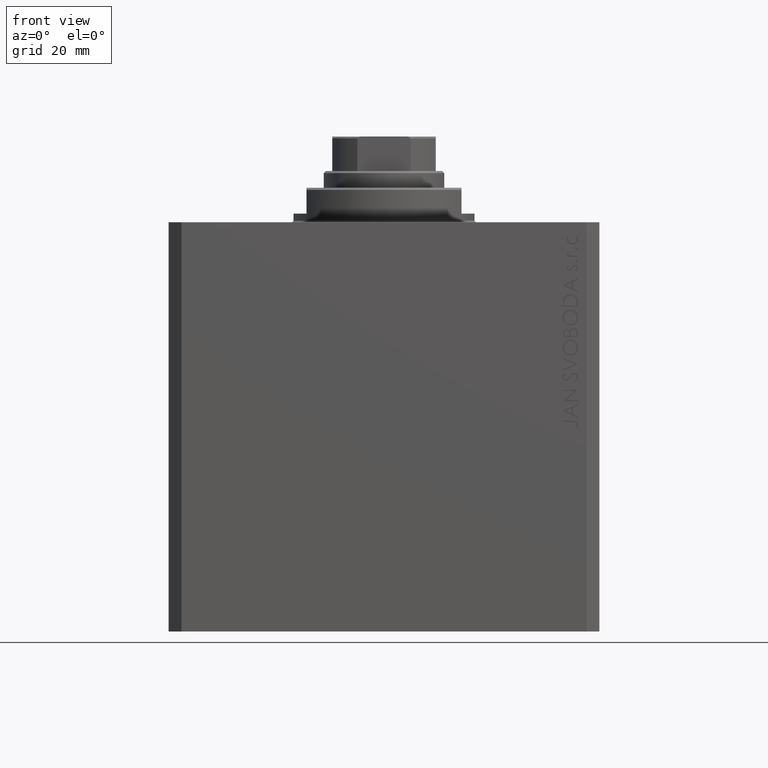
[diagram: clean part render]
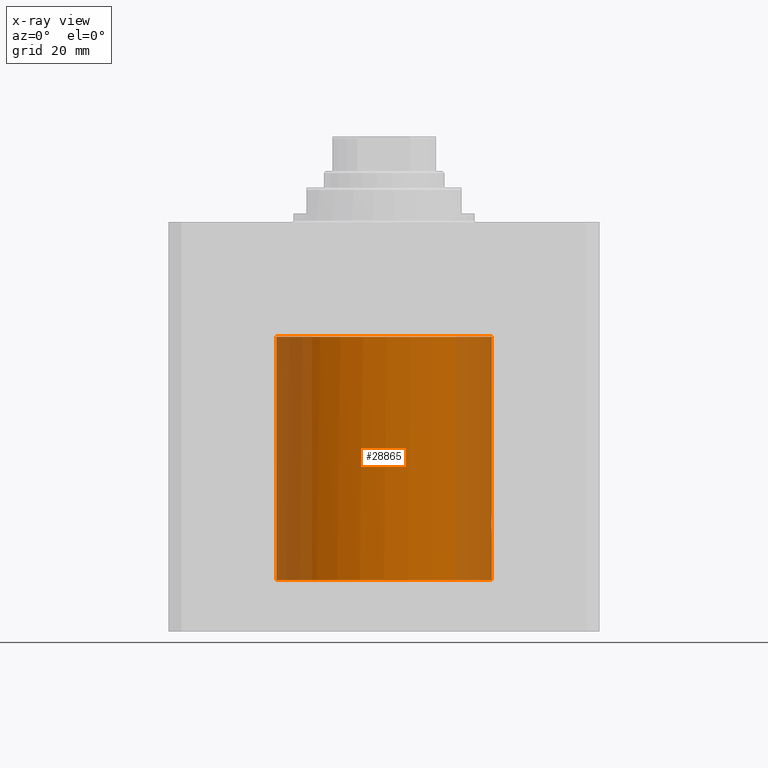
[diagram: x-ray — body ghosted, one internal face saturated and labeled with its STEP entity id]
A machine part, front view, then the same camera in x-ray: the body is ghosted and one INTERNAL B-rep face — a face not visible from any outside direction — is saturated and labeled: STEP entity #28865.
In plain terms, the highlighted cylindrical surface (partial cylindrical patch) has radius 25 mm, axis along (0, 0, 1).
Its self-contained STEP definition (entity closure, byte-faithful):
#567 = DIRECTION ( 'NONE',  ( -0.000000000000000000, -0.000000000000000000, 1.000000000000000000 ) ) ;
#1033 = CARTESIAN_POINT ( 'NONE',  ( -25.00000000000000000, 3.061616997868383043E-15, -83.10000000000000853 ) ) ;
#1096 = EDGE_CURVE ( 'NONE', #20864, #5226, #8448, .T. ) ;
#1787 = VECTOR ( 'NONE', #38809, 1000.000000000000000 ) ;
#2843 = CIRCLE ( 'NONE', #22936, 25.00000000000000000 ) ;
#2863 = ORIENTED_EDGE ( 'NONE', *, *, #17448, .T. ) ;
#2904 = ORIENTED_EDGE ( 'NONE', *, *, #37849, .T. ) ;
#2924 = CARTESIAN_POINT ( 'NONE',  ( 24.97044365941620825, -1.229268089636794459, -68.40095226892670155 ) ) ;
#3910 = ORIENTED_EDGE ( 'NONE', *, *, #6942, .T. ) ;
#3927 = CARTESIAN_POINT ( 'NONE',  ( 0.000000000000000000, 0.000000000000000000, -83.10000000000000853 ) ) ;
#4649 = LINE ( 'NONE', #18361, #31839 ) ;
#4783 = CARTESIAN_POINT ( 'NONE',  ( 24.92492036309734615, -1.936231817240110509, -70.51765847102743123 ) ) ;
#5226 = VERTEX_POINT ( 'NONE', #7083 ) ;
#5362 = ORIENTED_EDGE ( 'NONE', *, *, #27257, .F. ) ;
#5572 = CARTESIAN_POINT ( 'NONE',  ( 25.00000000000000000, 0.000000000000000000, -26.60000000000000142 ) ) ;
#6942 = EDGE_CURVE ( 'NONE', #14131, #5226, #21481, .T. ) ;
#7083 = CARTESIAN_POINT ( 'NONE',  ( 25.00000000000000000, 3.613683980139323145E-15, -72.00000000000001421 ) ) ;
#7750 = EDGE_CURVE ( 'NONE', #44349, #26385, #19792, .T. ) ;
#7938 = CARTESIAN_POINT ( 'NONE',  ( 24.98084662756578922, -1.007552051423933115, -71.74717343309792739 ) ) ;
#8131 = EDGE_LOOP ( 'NONE', ( #14135, #12727, #22295, #2863, #5362, #2904, #3910, #14443 ) ) ;
#8448 = LINE ( 'NONE', #25105, #1787 ) ;
#10474 = CARTESIAN_POINT ( 'NONE',  ( 25.00000000000000000, 0.000000000000000000, -83.10000000000000853 ) ) ;
#11322 = CARTESIAN_POINT ( 'NONE',  ( 24.97038992199981067, -1.230329354316970658, -71.59821141364186303 ) ) ;
#11573 = VECTOR ( 'NONE', #42652, 1000.000000000000000 ) ;
#11923 = DIRECTION ( 'NONE',  ( 0.000000000000000000, 0.000000000000000000, 1.000000000000000000 ) ) ;
#11977 = CARTESIAN_POINT ( 'NONE',  ( 24.92092324733700437, -1.987016169329289594, -70.26216537823158603 ) ) ;
#12399 = VERTEX_POINT ( 'NONE', #44246 ) ;
#12727 = ORIENTED_EDGE ( 'NONE', *, *, #29376, .T. ) ;
#12825 = CARTESIAN_POINT ( 'NONE',  ( 24.93536577148885769, -1.797238994522901923, -69.11280922950381012 ) ) ;
#13561 = CIRCLE ( 'NONE', #27219, 25.00000000000000000 ) ;
#14131 = VERTEX_POINT ( 'NONE', #21794 ) ;
#14135 = ORIENTED_EDGE ( 'NONE', *, *, #17053, .F. ) ;
#14443 = ORIENTED_EDGE ( 'NONE', *, *, #1096, .F. ) ;
#14670 = CARTESIAN_POINT ( 'NONE',  ( 24.95471987711457018, -1.506810090536970348, -71.32156001065118289 ) ) ;
#14787 = LINE ( 'NONE', #28516, #11573 ) ;
#15339 = CARTESIAN_POINT ( 'NONE',  ( 24.92791051474612374, -1.897843333548509426, -70.64449593272929917 ) ) ;
#16009 = CARTESIAN_POINT ( 'NONE',  ( 0.000000000000000000, 0.000000000000000000, -83.10000000000000853 ) ) ;
#16851 = CARTESIAN_POINT ( 'NONE',  ( 24.92792568664172137, -1.897644624959951454, -69.35492609411957687 ) ) ;
#17053 = EDGE_CURVE ( 'NONE', #22829, #20864, #13561, .T. ) ;
#17241 = CARTESIAN_POINT ( 'NONE',  ( -24.97118339206214088, -1.200000000000002620, -26.60000000000000142 ) ) ;
#17426 = DIRECTION ( 'NONE',  ( 1.000000000000000000, 0.000000000000000000, 0.000000000000000000 ) ) ;
#17448 = EDGE_CURVE ( 'NONE', #26385, #24960, #2843, .T. ) ;
#18052 = CARTESIAN_POINT ( 'NONE',  ( 24.93975241175589730, -1.736094255790495477, -71.00150820621502135 ) ) ;
#18361 = CARTESIAN_POINT ( 'NONE',  ( -25.00000000000000000, 3.061616997868383043E-15, -83.10000000000000853 ) ) ;
#18927 = DIRECTION ( 'NONE',  ( 0.000000000000000000, 0.000000000000000000, 1.000000000000000000 ) ) ;
#19789 = CARTESIAN_POINT ( 'NONE',  ( 24.99565873106722336, -0.5244817804283464779, -68.05247684620839266 ) ) ;
#19792 = B_SPLINE_CURVE_WITH_KNOTS ( 'NONE', 3,
 ( #23319, #44458, #27376, #17241 ),
 .UNSPECIFIED., .F., .F.,
 ( 4, 4 ),
 ( 0.001281773299168171296, 0.002560938234649063651 ),
 .UNSPECIFIED. ) ;
#20864 = VERTEX_POINT ( 'NONE', #10474 ) ;
#21031 = FACE_OUTER_BOUND ( 'NONE', #8131, .T. ) ;
#21089 = DIRECTION ( 'NONE',  ( -0.000000000000000000, -0.000000000000000000, 1.000000000000000000 ) ) ;
#21481 = B_SPLINE_CURVE_WITH_KNOTS ( 'NONE', 3,
 ( #39396, #35575, #11977, #4783, #15339, #25689, #18052, #31786, #14670, #11322, #7938, #21658, #35355, #31999 ),
 .UNSPECIFIED., .F., .F.,
 ( 4, 2, 2, 2, 2, 2, 4 ),
 ( 0.009383960523484150343, 0.009774637010144549346, 0.01016531349680494661, 0.01055598998346534562, 0.01094666647012574462, 0.01172801944344654089, 0.01250937241676733716 ),
 .UNSPECIFIED. ) ;
#21658 = CARTESIAN_POINT ( 'NONE',  ( 24.99560856256381314, -0.5266991108598200189, -71.94688576662107948 ) ) ;
#21794 = CARTESIAN_POINT ( 'NONE',  ( 24.91987158875425834, -1.999999999999617195, -70.00000000000000000 ) ) ;
#22295 = ORIENTED_EDGE ( 'NONE', *, *, #7750, .T. ) ;
#22829 = VERTEX_POINT ( 'NONE', #1033 ) ;
#22936 = AXIS2_PLACEMENT_3D ( 'NONE', #39343, #11923, #36647 ) ;
#22947 = CARTESIAN_POINT ( 'NONE',  ( 24.98090984630898959, -1.006071462949136519, -68.25193026912691607 ) ) ;
#23319 = CARTESIAN_POINT ( 'NONE',  ( -25.00000000000000000, 3.060241555953638093E-15, -26.99999999999999645 ) ) ;
#23382 = CARTESIAN_POINT ( 'NONE',  ( 25.00000000000000000, -1.072061970195355044E-23, -68.00000000000000000 ) ) ;
#24960 = VERTEX_POINT ( 'NONE', #5572 ) ;
#25105 = CARTESIAN_POINT ( 'NONE',  ( 25.00000000000000000, 0.000000000000000000, -83.10000000000000853 ) ) ;
#25689 = CARTESIAN_POINT ( 'NONE',  ( 24.93534824074299294, -1.797481588990658352, -70.88670415767539623 ) ) ;
#26385 = VERTEX_POINT ( 'NONE', #43836 ) ;
#27219 = AXIS2_PLACEMENT_3D ( 'NONE', #16009, #18927, #43222 ) ;
#27257 = EDGE_CURVE ( 'NONE', #12399, #24960, #14787, .T. ) ;
#27376 = CARTESIAN_POINT ( 'NONE',  ( -24.98779886205974066, -0.8542433762871678438, -26.85931746778462781 ) ) ;
#27438 = CARTESIAN_POINT ( 'NONE',  ( 24.91987158875426189, -1.999999999999617639, -69.86789023613141580 ) ) ;
#28516 = CARTESIAN_POINT ( 'NONE',  ( 25.00000000000000000, 0.000000000000000000, -83.10000000000000853 ) ) ;
#28865 = ADVANCED_FACE ( 'NONE', ( #21031 ), #34729, .F. ) ;
#29376 = EDGE_CURVE ( 'NONE', #22829, #44349, #4649, .T. ) ;
#29915 = CARTESIAN_POINT ( 'NONE',  ( 24.92092149243353916, -1.987038635589096103, -69.73792531990252996 ) ) ;
#30357 = CARTESIAN_POINT ( 'NONE',  ( 24.91987158875425834, -1.999999999999617195, -70.00000000000000000 ) ) ;
#30577 = CARTESIAN_POINT ( 'NONE',  ( 24.93977429142936586, -1.735787185333330429, -68.99793003344203157 ) ) ;
#31786 = CARTESIAN_POINT ( 'NONE',  ( 24.94941743214358354, -1.591176741070260636, -71.21868721613955699 ) ) ;
#31839 = VECTOR ( 'NONE', #21089, 1000.000000000000000 ) ;
#31999 = CARTESIAN_POINT ( 'NONE',  ( 25.00000000000000000, 3.613683980139323145E-15, -72.00000000000001421 ) ) ;
#33508 = CARTESIAN_POINT ( 'NONE',  ( 24.92492416753309215, -1.936183311074788804, -69.48211983704001682 ) ) ;
#34729 = CYLINDRICAL_SURFACE ( 'NONE', #38875, 25.00000000000000000 ) ;
#35355 = CARTESIAN_POINT ( 'NONE',  ( 25.00000000000000000, -0.2642091141341225691, -71.99999999999995737 ) ) ;
#35575 = CARTESIAN_POINT ( 'NONE',  ( 24.91987158875425834, -1.999999999999617195, -70.13197722058535533 ) ) ;
#36647 = DIRECTION ( 'NONE',  ( 1.000000000000000000, 0.000000000000000000, 0.000000000000000000 ) ) ;
#37100 = CARTESIAN_POINT ( 'NONE',  ( 25.00000000000000000, -0.2611828738978722031, -68.00000000000002842 ) ) ;
#37849 = EDGE_CURVE ( 'NONE', #12399, #14131, #42293, .T. ) ;
#38809 = DIRECTION ( 'NONE',  ( -0.000000000000000000, -0.000000000000000000, 1.000000000000000000 ) ) ;
#38875 = AXIS2_PLACEMENT_3D ( 'NONE', #3927, #567, #17426 ) ;
#39195 = CARTESIAN_POINT ( 'NONE',  ( -25.00000000000000000, 3.060241555953638093E-15, -26.99999999999999645 ) ) ;
#39343 = CARTESIAN_POINT ( 'NONE',  ( 0.000000000000000000, 0.000000000000000000, -26.60000000000000142 ) ) ;
#39396 = CARTESIAN_POINT ( 'NONE',  ( 24.91987158875425834, -1.999999999999617195, -70.00000000000000000 ) ) ;
#42293 = B_SPLINE_CURVE_WITH_KNOTS ( 'NONE', 3,
 ( #23382, #37100, #19789, #22947, #2924, #43855, #43629, #30577, #12825, #16851, #33508, #29915, #27438, #30357 ),
 .UNSPECIFIED., .F., .F.,
 ( 4, 2, 2, 2, 2, 2, 4 ),
 ( 0.006255409813123470435, 0.007037547490713640629, 0.007819685168303809955, 0.008210754007098895052, 0.008601822845893980149, 0.008992891684689065246, 0.009383960523484150343 ),
 .UNSPECIFIED. ) ;
#42652 = DIRECTION ( 'NONE',  ( -0.000000000000000000, -0.000000000000000000, 1.000000000000000000 ) ) ;
#43222 = DIRECTION ( 'NONE',  ( 1.000000000000000000, 0.000000000000000000, 0.000000000000000000 ) ) ;
#43629 = CARTESIAN_POINT ( 'NONE',  ( 24.94945961177561955, -1.590523165686661855, -68.78043555723404268 ) ) ;
#43836 = CARTESIAN_POINT ( 'NONE',  ( -24.97118339206214088, -1.200000000000002620, -26.60000000000000142 ) ) ;
#43855 = CARTESIAN_POINT ( 'NONE',  ( 24.95476631310972593, -1.506046946198441372, -68.67756436207359627 ) ) ;
#44246 = CARTESIAN_POINT ( 'NONE',  ( 25.00000000000000000, -1.072061970195355044E-23, -68.00000000000000000 ) ) ;
#44349 = VERTEX_POINT ( 'NONE', #39195 ) ;
#44458 = CARTESIAN_POINT ( 'NONE',  ( -25.00000000000000000, -0.4304833767753876717, -27.00000000000000000 ) ) ;